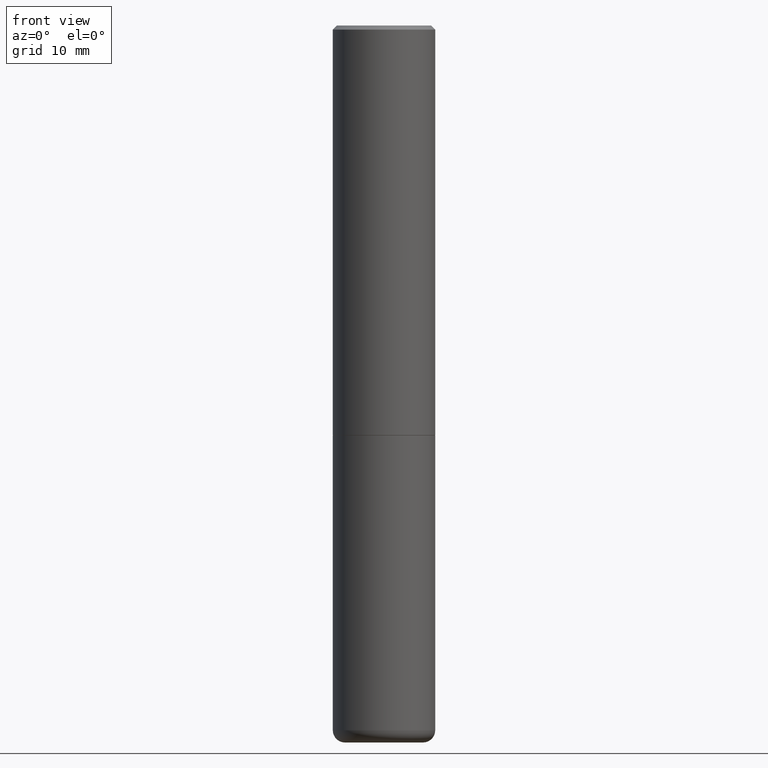
[diagram: clean part render]
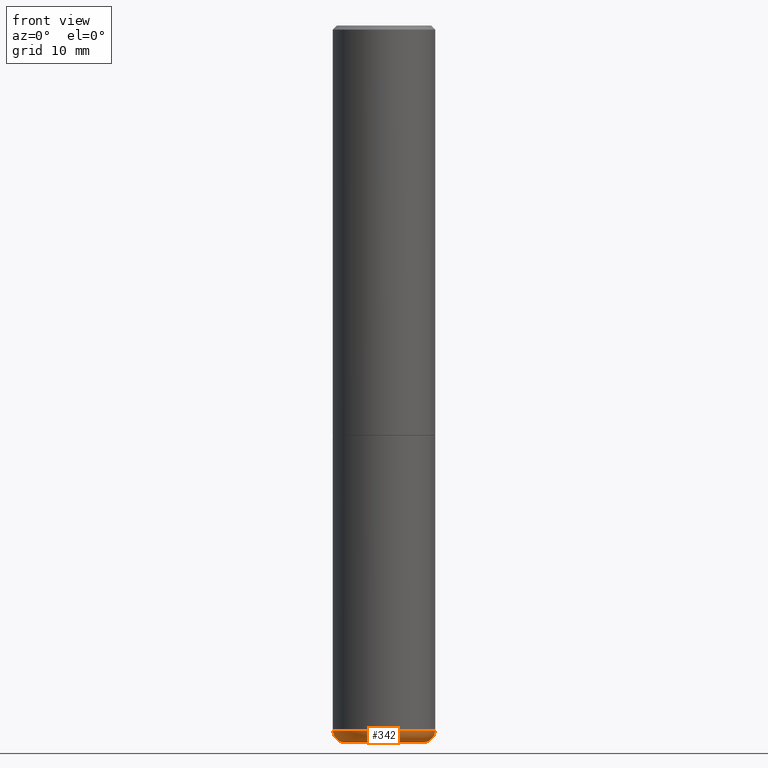
[diagram: same view with one face highlighted and labeled with its STEP entity id]
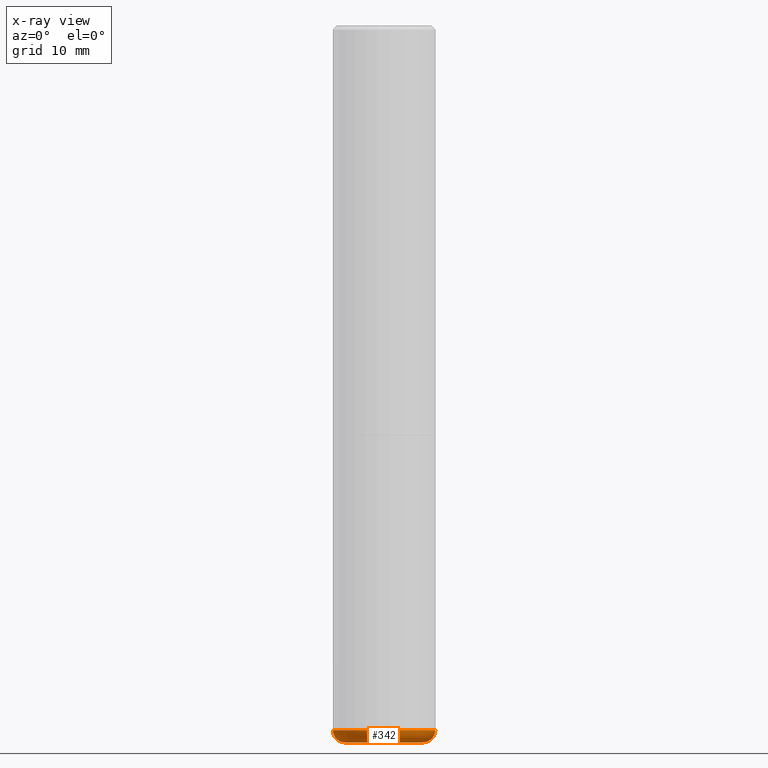
[diagram: x-ray of the same camera — body ghosted, the highlighted face saturated]
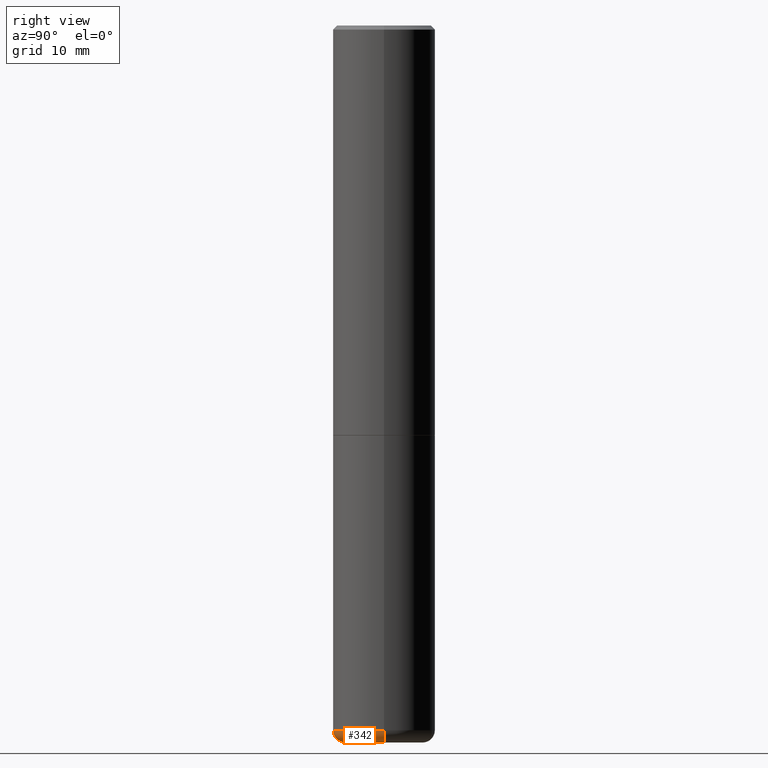
[diagram: same view with one face highlighted and labeled with its STEP entity id]
A machine part, front view. The second image highlights one B-rep face of the part: STEP entity #342.
The next image is the same camera in x-ray: the body ghosted, the highlighted face saturated — about 0% of this face is hidden behind the body in this view.
A second angle (right view) of the same face is appended — the face is thin or edge-on in the first view.
In plain terms, the highlighted toroidal blend (fillet) surface has major radius 4.826 mm and minor (blend) radius 1.524 mm.
Its self-contained STEP definition (entity closure, byte-faithful):
#12 = ORIENTED_EDGE ( 'NONE', *, *, #386, .T. ) ;
#14 = CARTESIAN_POINT ( 'NONE',  ( -0.1899999999999999745, -1.066066460767623105E-14, -3.439999999999999947 ) ) ;
#26 = AXIS2_PLACEMENT_3D ( 'NONE', #280, #312, #76 ) ;
#40 = VERTEX_POINT ( 'NONE', #300 ) ;
#55 = CARTESIAN_POINT ( 'NONE',  ( 8.559140821647976968E-29, -1.222018468595100934E-14, -3.500000000000000000 ) ) ;
#60 = DIRECTION ( 'NONE',  ( 1.000000000000000000, -6.982962677686273021E-15, 0.000000000000000000 ) ) ;
#70 = ORIENTED_EDGE ( 'NONE', *, *, #278, .T. ) ;
#76 = DIRECTION ( 'NONE',  ( 1.000000000000000000, -6.982962677686274599E-15, 0.000000000000000000 ) ) ;
#97 = AXIS2_PLACEMENT_3D ( 'NONE', #14, #339, #162 ) ;
#102 = VERTEX_POINT ( 'NONE', #297 ) ;
#114 = FACE_OUTER_BOUND ( 'NONE', #246, .T. ) ;
#116 = AXIS2_PLACEMENT_3D ( 'NONE', #404, #341, #338 ) ;
#131 = DIRECTION ( 'NONE',  ( -2.445468806185136597E-29, 3.491481338843145583E-15, 1.000000000000000000 ) ) ;
#149 = CIRCLE ( 'NONE', #26, 0.05999999999999994227 ) ;
#159 = CIRCLE ( 'NONE', #378, 0.1899999999999999745 ) ;
#162 = DIRECTION ( 'NONE',  ( -1.000000000000000000, 7.105427357600997914E-15, 0.000000000000000000 ) ) ;
#185 = CIRCLE ( 'NONE', #210, 0.2500000000000000000 ) ;
#188 = DIRECTION ( 'NONE',  ( -2.445468806185136597E-29, 3.491481338843145583E-15, 1.000000000000000000 ) ) ;
#210 = AXIS2_PLACEMENT_3D ( 'NONE', #218, #188, #332 ) ;
#218 = CARTESIAN_POINT ( 'NONE',  ( 8.412412693276869938E-29, -1.201069580562042103E-14, -3.439999999999999947 ) ) ;
#235 = TOROIDAL_SURFACE ( 'NONE', #116, 0.1899999999999999745, 0.05999999999999995615 ) ;
#246 = EDGE_LOOP ( 'NONE', ( #364, #70, #12, #391 ) ) ;
#254 = CIRCLE ( 'NONE', #97, 0.05999999999999994227 ) ;
#260 = CARTESIAN_POINT ( 'NONE',  ( -0.2499999999999999722, -1.023433896622016898E-14, -3.439999999999999947 ) ) ;
#278 = EDGE_CURVE ( 'NONE', #40, #292, #159, .T. ) ;
#280 = CARTESIAN_POINT ( 'NONE',  ( 0.1899999999999999745, -1.333745871438081265E-14, -3.439999999999999947 ) ) ;
#292 = VERTEX_POINT ( 'NONE', #305 ) ;
#297 = CARTESIAN_POINT ( 'NONE',  ( 0.2499999999999999722, -1.375643647504198770E-14, -3.439999999999999947 ) ) ;
#300 = CARTESIAN_POINT ( 'NONE',  ( -0.1899999999999999745, -1.055224622711349575E-14, -3.500000000000000000 ) ) ;
#305 = CARTESIAN_POINT ( 'NONE',  ( 0.1899999999999999745, -1.354694759471140096E-14, -3.500000000000000000 ) ) ;
#312 = DIRECTION ( 'NONE',  ( -6.982962677686266711E-15, -1.000000000000000000, 3.491481338843145583E-15 ) ) ;
#332 = DIRECTION ( 'NONE',  ( 1.000000000000000000, -6.982962677686270655E-15, 0.000000000000000000 ) ) ;
#338 = DIRECTION ( 'NONE',  ( 1.000000000000000000, -6.982962677686265133E-15, 4.883557194083112340E-29 ) ) ;
#339 = DIRECTION ( 'NONE',  ( 7.105427357601001859E-15, 1.000000000000000000, -3.491481338843145583E-15 ) ) ;
#341 = DIRECTION ( 'NONE',  ( -2.445468806185136597E-29, 3.491481338843145583E-15, 1.000000000000000000 ) ) ;
#342 = ADVANCED_FACE ( 'NONE', ( #114 ), #235, .T. ) ;
#349 = EDGE_CURVE ( 'NONE', #396, #102, #185, .T. ) ;
#364 = ORIENTED_EDGE ( 'NONE', *, *, #415, .F. ) ;
#378 = AXIS2_PLACEMENT_3D ( 'NONE', #55, #131, #60 ) ;
#386 = EDGE_CURVE ( 'NONE', #292, #102, #149, .T. ) ;
#391 = ORIENTED_EDGE ( 'NONE', *, *, #349, .F. ) ;
#396 = VERTEX_POINT ( 'NONE', #260 ) ;
#404 = CARTESIAN_POINT ( 'NONE',  ( 8.412412693276869938E-29, -1.201069580562042103E-14, -3.439999999999999947 ) ) ;
#415 = EDGE_CURVE ( 'NONE', #40, #396, #254, .T. ) ;